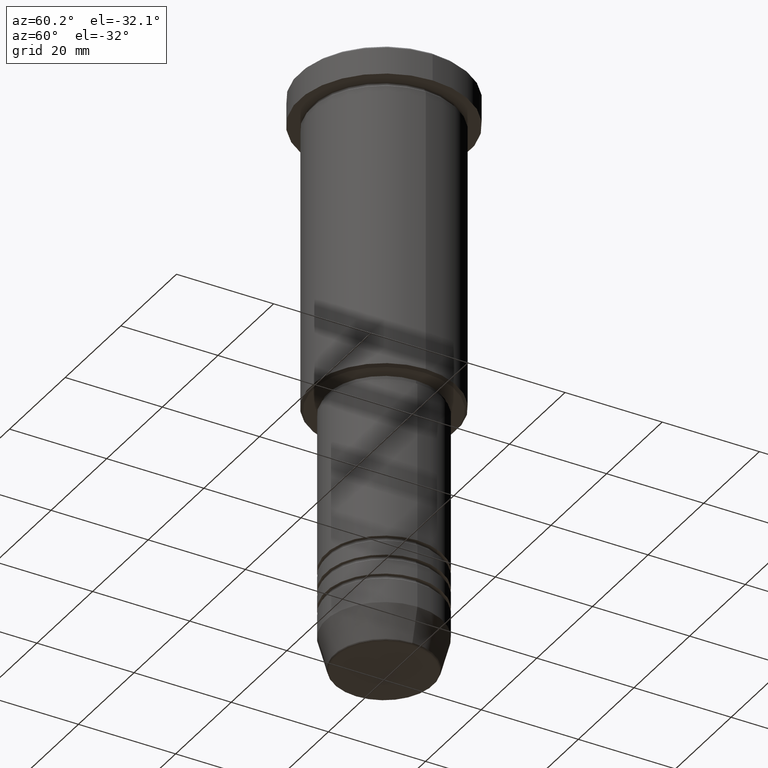
[diagram: clean part render]
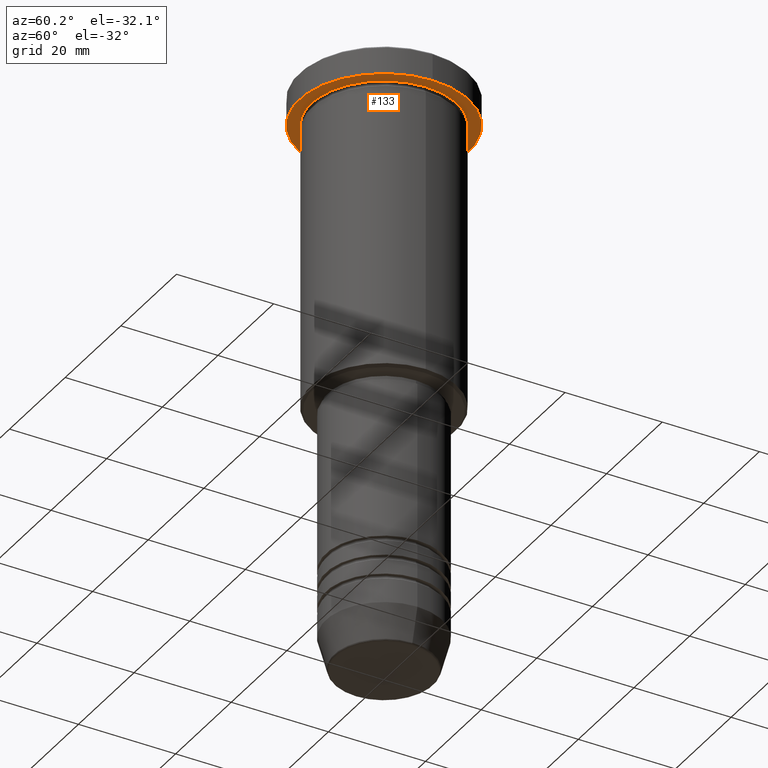
[diagram: same view with one face highlighted and labeled with its STEP entity id]
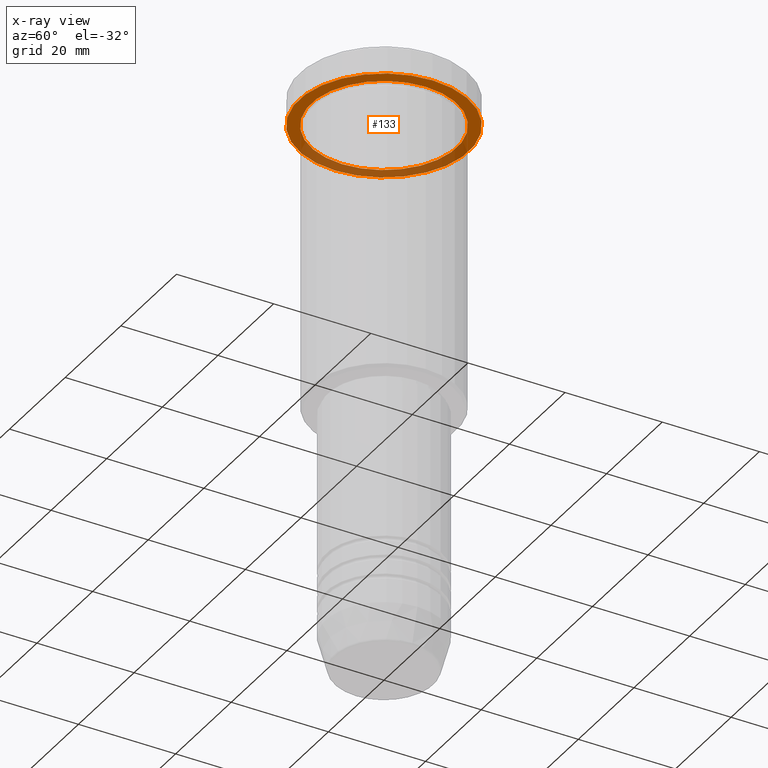
[diagram: x-ray of the same camera — body ghosted, the highlighted face saturated]
A machine part, auxiliary view. The second image highlights one B-rep face of the part: STEP entity #133.
The next image is the same camera in x-ray: the body ghosted, the highlighted face saturated — about 35% of this face is hidden behind the body in this view.
In plain terms, the highlighted planar face has unit normal (0, 0, -1).
Its self-contained STEP definition (entity closure, byte-faithful):
#1 = CARTESIAN_POINT ( 'NONE',  ( 0.000000000000000000, 0.000000000000000000, -5.999999999999995559 ) ) ;
#37 = CARTESIAN_POINT ( 'NONE',  ( -17.50000000000000000, 2.143131898507868248E-15, -5.999999999999995559 ) ) ;
#44 = DIRECTION ( 'NONE',  ( 1.000000000000000000, 0.000000000000000000, 0.000000000000000000 ) ) ;
#68 = CIRCLE ( 'NONE', #495, 17.50000000000000000 ) ;
#133 = ADVANCED_FACE ( 'NONE', ( #426, #524 ), #136, .T. ) ;
#136 = PLANE ( 'NONE',  #866 ) ;
#137 = DIRECTION ( 'NONE',  ( -0.000000000000000000, -0.000000000000000000, 1.000000000000000000 ) ) ;
#148 = DIRECTION ( 'NONE',  ( 0.000000000000000000, 0.000000000000000000, -1.000000000000000000 ) ) ;
#151 = CIRCLE ( 'NONE', #262, 15.00000000000000000 ) ;
#204 = CIRCLE ( 'NONE', #1134, 15.00000000000000000 ) ;
#230 = EDGE_LOOP ( 'NONE', ( #732, #1072 ) ) ;
#247 = DIRECTION ( 'NONE',  ( -1.000000000000000000, 0.000000000000000000, 0.000000000000000000 ) ) ;
#253 = EDGE_CURVE ( 'NONE', #831, #1051, #68, .T. ) ;
#262 = AXIS2_PLACEMENT_3D ( 'NONE', #1145, #880, #247 ) ;
#271 = CARTESIAN_POINT ( 'NONE',  ( 0.000000000000000000, 0.000000000000000000, -5.999999999999995559 ) ) ;
#296 = AXIS2_PLACEMENT_3D ( 'NONE', #619, #137, #44 ) ;
#309 = DIRECTION ( 'NONE',  ( -1.000000000000000000, 0.000000000000000000, -0.000000000000000000 ) ) ;
#362 = ORIENTED_EDGE ( 'NONE', *, *, #253, .F. ) ;
#389 = ORIENTED_EDGE ( 'NONE', *, *, #615, .F. ) ;
#402 = EDGE_CURVE ( 'NONE', #1010, #509, #204, .T. ) ;
#426 = FACE_BOUND ( 'NONE', #230, .T. ) ;
#480 = DIRECTION ( 'NONE',  ( -1.000000000000000000, 0.000000000000000000, 0.000000000000000000 ) ) ;
#495 = AXIS2_PLACEMENT_3D ( 'NONE', #271, #909, #539 ) ;
#509 = VERTEX_POINT ( 'NONE', #836 ) ;
#524 = FACE_OUTER_BOUND ( 'NONE', #711, .T. ) ;
#539 = DIRECTION ( 'NONE',  ( 1.000000000000000000, 0.000000000000000000, 0.000000000000000000 ) ) ;
#615 = EDGE_CURVE ( 'NONE', #1051, #831, #737, .T. ) ;
#619 = CARTESIAN_POINT ( 'NONE',  ( 0.000000000000000000, 0.000000000000000000, -5.999999999999995559 ) ) ;
#711 = EDGE_LOOP ( 'NONE', ( #389, #362 ) ) ;
#732 = ORIENTED_EDGE ( 'NONE', *, *, #1029, .T. ) ;
#737 = CIRCLE ( 'NONE', #296, 17.50000000000000000 ) ;
#831 = VERTEX_POINT ( 'NONE', #37 ) ;
#836 = CARTESIAN_POINT ( 'NONE',  ( -15.00000000000000000, 0.000000000000000000, -5.999999999999994671 ) ) ;
#866 = AXIS2_PLACEMENT_3D ( 'NONE', #1152, #148, #309 ) ;
#880 = DIRECTION ( 'NONE',  ( -0.000000000000000000, -0.000000000000000000, 1.000000000000000000 ) ) ;
#909 = DIRECTION ( 'NONE',  ( -0.000000000000000000, -0.000000000000000000, 1.000000000000000000 ) ) ;
#968 = CARTESIAN_POINT ( 'NONE',  ( 17.50000000000000000, 0.000000000000000000, -5.999999999999995559 ) ) ;
#1010 = VERTEX_POINT ( 'NONE', #1064 ) ;
#1029 = EDGE_CURVE ( 'NONE', #509, #1010, #151, .T. ) ;
#1051 = VERTEX_POINT ( 'NONE', #968 ) ;
#1064 = CARTESIAN_POINT ( 'NONE',  ( 15.00000000000000000, 1.836970198721029589E-15, -5.999999999999994671 ) ) ;
#1072 = ORIENTED_EDGE ( 'NONE', *, *, #402, .T. ) ;
#1098 = DIRECTION ( 'NONE',  ( -0.000000000000000000, -0.000000000000000000, 1.000000000000000000 ) ) ;
#1134 = AXIS2_PLACEMENT_3D ( 'NONE', #1, #1098, #480 ) ;
#1145 = CARTESIAN_POINT ( 'NONE',  ( 0.000000000000000000, 0.000000000000000000, -5.999999999999995559 ) ) ;
#1152 = CARTESIAN_POINT ( 'NONE',  ( 0.000000000000000000, 17.50000000000000000, -5.999999999999995559 ) ) ;